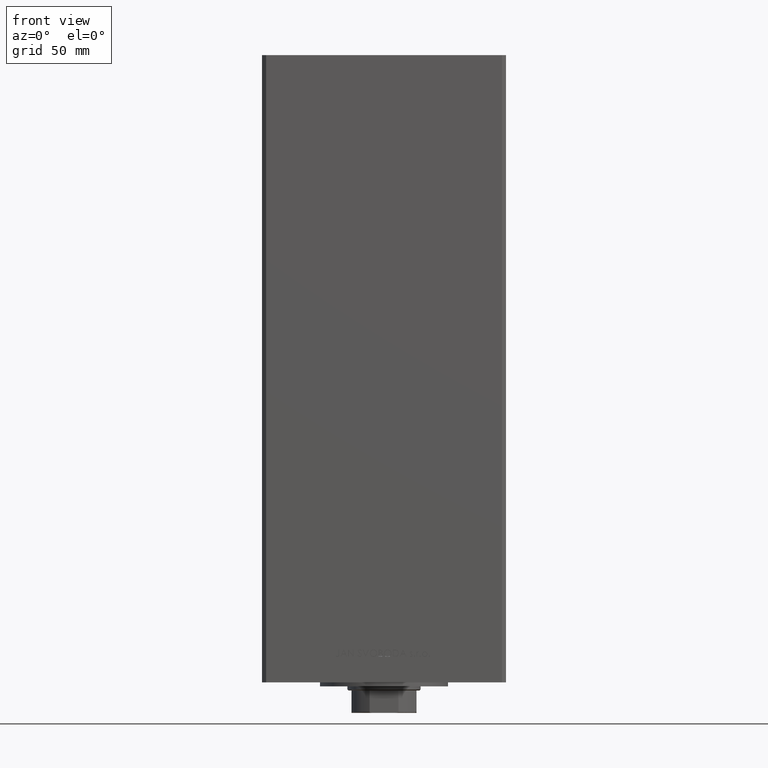
[diagram: clean part render]
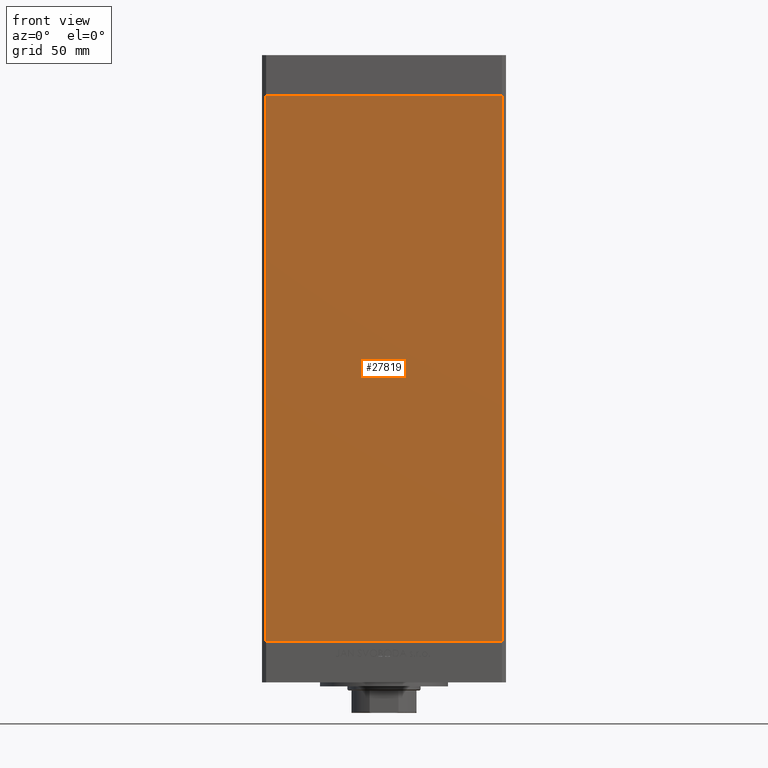
[diagram: same view with one face highlighted and labeled with its STEP entity id]
A machine part, front view. The second image highlights one B-rep face of the part: STEP entity #27819.
In plain terms, the highlighted planar face has unit normal (0, 1, 0).
Its self-contained STEP definition (entity closure, byte-faithful):
#3112 = CARTESIAN_POINT ( 'NONE',  ( -57.99999999999997868, -51.00000000000000711, 0.000000000000000000 ) ) ;
#3240 = DIRECTION ( 'NONE',  ( 0.000000000000000000, -0.000000000000000000, 1.000000000000000000 ) ) ;
#3289 = VECTOR ( 'NONE', #3856, 1000.000000000000000 ) ;
#3856 = DIRECTION ( 'NONE',  ( 1.000000000000000000, 0.000000000000000000, 0.000000000000000000 ) ) ;
#4285 = EDGE_LOOP ( 'NONE', ( #16085, #35028, #40828, #30776 ) ) ;
#5998 = LINE ( 'NONE', #24891, #6638 ) ;
#6638 = VECTOR ( 'NONE', #24388, 1000.000000000000000 ) ;
#7204 = CARTESIAN_POINT ( 'NONE',  ( -57.99999999999997868, -51.00000000000000711, 268.5000000000000000 ) ) ;
#7290 = EDGE_CURVE ( 'NONE', #15978, #37763, #40773, .T. ) ;
#8218 = CARTESIAN_POINT ( 'NONE',  ( 57.99999999999997868, -51.00000000000000711, 268.5000000000000000 ) ) ;
#9614 = LINE ( 'NONE', #28253, #20073 ) ;
#11046 = LINE ( 'NONE', #3112, #3289 ) ;
#15978 = VERTEX_POINT ( 'NONE', #33423 ) ;
#16085 = ORIENTED_EDGE ( 'NONE', *, *, #17161, .T. ) ;
#17161 = EDGE_CURVE ( 'NONE', #37763, #22962, #11046, .T. ) ;
#17563 = DIRECTION ( 'NONE',  ( 1.000000000000000000, 0.000000000000000000, 0.000000000000000000 ) ) ;
#19001 = VECTOR ( 'NONE', #44500, 1000.000000000000000 ) ;
#20073 = VECTOR ( 'NONE', #17563, 1000.000000000000000 ) ;
#20877 = EDGE_CURVE ( 'NONE', #15978, #34396, #9614, .T. ) ;
#22962 = VERTEX_POINT ( 'NONE', #36681 ) ;
#24388 = DIRECTION ( 'NONE',  ( -0.000000000000000000, -0.000000000000000000, -1.000000000000000000 ) ) ;
#24891 = CARTESIAN_POINT ( 'NONE',  ( 57.99999999999997868, -51.00000000000000711, 268.5000000000000000 ) ) ;
#25561 = CARTESIAN_POINT ( 'NONE',  ( -57.99999999999997868, -51.00000000000000711, 0.000000000000000000 ) ) ;
#27819 = ADVANCED_FACE ( 'NONE', ( #28843 ), #41018, .F. ) ;
#28253 = CARTESIAN_POINT ( 'NONE',  ( -57.99999999999997868, -51.00000000000000711, 268.5000000000000000 ) ) ;
#28843 = FACE_OUTER_BOUND ( 'NONE', #4285, .T. ) ;
#29079 = CARTESIAN_POINT ( 'NONE',  ( -57.99999999999997868, -51.00000000000000711, 268.5000000000000000 ) ) ;
#30776 = ORIENTED_EDGE ( 'NONE', *, *, #7290, .T. ) ;
#31079 = AXIS2_PLACEMENT_3D ( 'NONE', #29079, #40534, #3240 ) ;
#31912 = EDGE_CURVE ( 'NONE', #34396, #22962, #5998, .T. ) ;
#33423 = CARTESIAN_POINT ( 'NONE',  ( -57.99999999999997868, -51.00000000000000711, 268.5000000000000000 ) ) ;
#34396 = VERTEX_POINT ( 'NONE', #8218 ) ;
#35028 = ORIENTED_EDGE ( 'NONE', *, *, #31912, .F. ) ;
#36681 = CARTESIAN_POINT ( 'NONE',  ( 57.99999999999997868, -51.00000000000000711, 0.000000000000000000 ) ) ;
#37763 = VERTEX_POINT ( 'NONE', #25561 ) ;
#40534 = DIRECTION ( 'NONE',  ( 0.000000000000000000, 1.000000000000000000, 0.000000000000000000 ) ) ;
#40773 = LINE ( 'NONE', #7204, #19001 ) ;
#40828 = ORIENTED_EDGE ( 'NONE', *, *, #20877, .F. ) ;
#41018 = PLANE ( 'NONE',  #31079 ) ;
#44500 = DIRECTION ( 'NONE',  ( -0.000000000000000000, -0.000000000000000000, -1.000000000000000000 ) ) ;